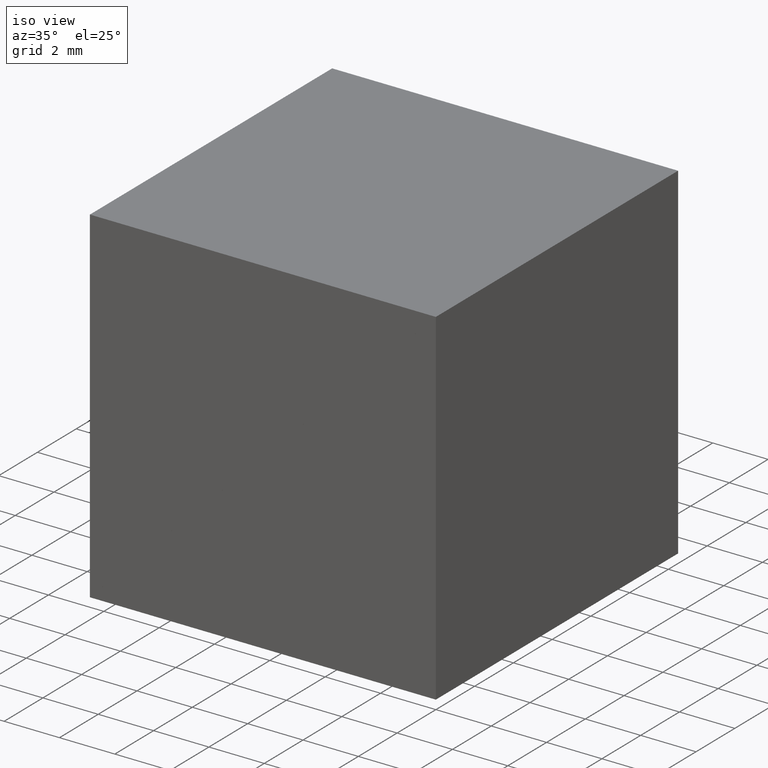
[diagram: clean part render]
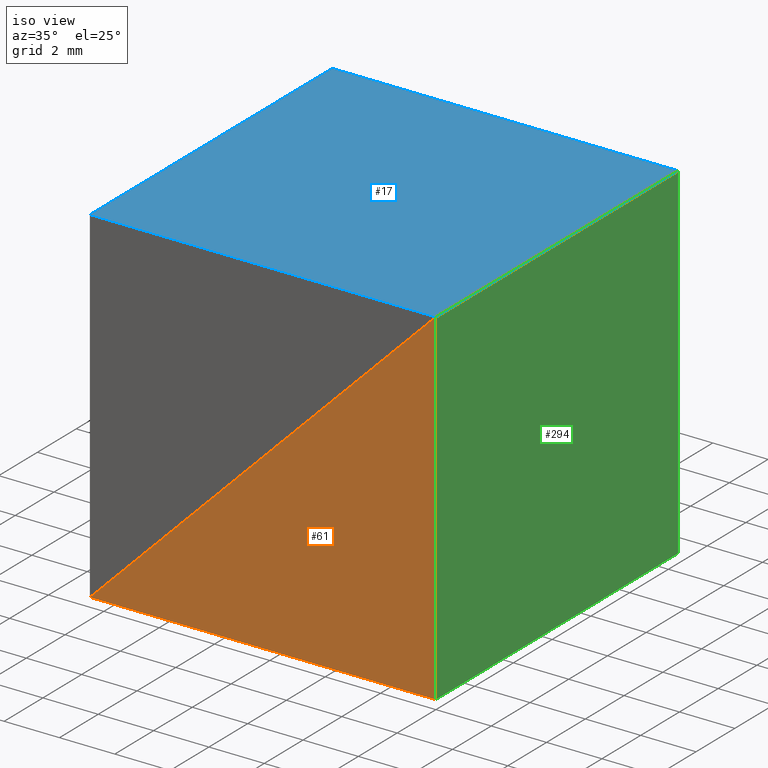
[diagram: same view with three faces highlighted in distinct colors, each labeled with its STEP entity id]
A machine part, iso view with three faces highlighted in distinct colors.
Their STEP definitions:

[orange] entity #61 — the highlighted planar face has unit normal (-0, 1, 0).
#39 = VECTOR ( 'NONE', #239, 1000.000000000000000 ) ;
#40 = AXIS2_PLACEMENT_3D ( 'NONE', #66, #200, #46 ) ;
#44 = VECTOR ( 'NONE', #103, 1000.000000000000000 ) ;
#46 = DIRECTION ( 'NONE',  ( 0.0000000000000000000, -0.0000000000000000000, 1.000000000000000000 ) ) ;
#61 = ADVANCED_FACE ( 'NONE', ( #203 ), #106, .F. ) ;
#66 = CARTESIAN_POINT ( 'NONE',  ( 0.0000000000000000000, 0.0000000000000000000, 0.0000000000000000000 ) ) ;
#71 = LINE ( 'NONE', #226, #213 ) ;
#103 = DIRECTION ( 'NONE',  ( 0.0000000000000000000, 0.0000000000000000000, -1.000000000000000000 ) ) ;
#106 = PLANE ( 'NONE',  #40 ) ;
#125 = EDGE_CURVE ( 'NONE', #240, #220, #71, .T. ) ;
#140 = LINE ( 'NONE', #217, #39 ) ;
#142 = CARTESIAN_POINT ( 'NONE',  ( -12.50000000000000000, 0.0000000000000000000, -12.49999999999999800 ) ) ;
#157 = EDGE_LOOP ( 'NONE', ( #191, #193, #251 ) ) ;
#191 = ORIENTED_EDGE ( 'NONE', *, *, #125, .F. ) ;
#193 = ORIENTED_EDGE ( 'NONE', *, *, #245, .F. ) ;
#197 = CARTESIAN_POINT ( 'NONE',  ( 0.0000000000000000000, 0.0000000000000000000, 0.0000000000000000000 ) ) ;
#199 = LINE ( 'NONE', #197, #44 ) ;
#200 = DIRECTION ( 'NONE',  ( -0.0000000000000000000, 1.000000000000000000, 0.0000000000000000000 ) ) ;
#203 = FACE_OUTER_BOUND ( 'NONE', #157, .T. ) ;
#213 = VECTOR ( 'NONE', #247, 1000.000000000000000 ) ;
#217 = CARTESIAN_POINT ( 'NONE',  ( 0.0000000000000000000, 0.0000000000000000000, -12.50000000000000000 ) ) ;
#220 = VERTEX_POINT ( 'NONE', #230 ) ;
#226 = CARTESIAN_POINT ( 'NONE',  ( -12.50000000000000000, 0.0000000000000000000, -12.49999999999999800 ) ) ;
#228 = EDGE_CURVE ( 'NONE', #220, #292, #199, .T. ) ;
#230 = CARTESIAN_POINT ( 'NONE',  ( 0.0000000000000000000, 0.0000000000000000000, 0.0000000000000000000 ) ) ;
#234 = CARTESIAN_POINT ( 'NONE',  ( 0.0000000000000000000, 0.0000000000000000000, -12.50000000000000000 ) ) ;
#239 = DIRECTION ( 'NONE',  ( -1.000000000000000000, 0.0000000000000000000, 1.387778780781445700E-016 ) ) ;
#240 = VERTEX_POINT ( 'NONE', #142 ) ;
#245 = EDGE_CURVE ( 'NONE', #292, #240, #140, .T. ) ;
#247 = DIRECTION ( 'NONE',  ( 0.7071067811865475700, 0.0000000000000000000, 0.7071067811865474600 ) ) ;
#251 = ORIENTED_EDGE ( 'NONE', *, *, #228, .F. ) ;
#292 = VERTEX_POINT ( 'NONE', #234 ) ;

[blue] entity #17 — the highlighted planar face has unit normal (-0, 0, 1).
#3 = AXIS2_PLACEMENT_3D ( 'NONE', #130, #201, #47 ) ;
#13 = VERTEX_POINT ( 'NONE', #244 ) ;
#17 = ADVANCED_FACE ( 'NONE', ( #78 ), #67, .T. ) ;
#18 = CARTESIAN_POINT ( 'NONE',  ( -12.50000000000000000, 0.0000000000000000000, 0.0000000000000000000 ) ) ;
#31 = LINE ( 'NONE', #301, #179 ) ;
#47 = DIRECTION ( 'NONE',  ( 1.000000000000000000, 0.0000000000000000000, 0.0000000000000000000 ) ) ;
#58 = VERTEX_POINT ( 'NONE', #274 ) ;
#62 = DIRECTION ( 'NONE',  ( 0.0000000000000000000, -1.000000000000000000, 0.0000000000000000000 ) ) ;
#67 = PLANE ( 'NONE',  #3 ) ;
#70 = VERTEX_POINT ( 'NONE', #243 ) ;
#72 = ORIENTED_EDGE ( 'NONE', *, *, #278, .F. ) ;
#78 = FACE_OUTER_BOUND ( 'NONE', #236, .T. ) ;
#83 = VECTOR ( 'NONE', #62, 1000.000000000000000 ) ;
#111 = VERTEX_POINT ( 'NONE', #156 ) ;
#115 = CARTESIAN_POINT ( 'NONE',  ( 0.0000000000000000000, 12.50000000000000000, 0.0000000000000000000 ) ) ;
#130 = CARTESIAN_POINT ( 'NONE',  ( -12.50000000000000000, 12.50000000000000000, 0.0000000000000000000 ) ) ;
#131 = VECTOR ( 'NONE', #225, 1000.000000000000000 ) ;
#132 = ORIENTED_EDGE ( 'NONE', *, *, #222, .F. ) ;
#138 = LINE ( 'NONE', #262, #146 ) ;
#139 = LINE ( 'NONE', #18, #131 ) ;
#146 = VECTOR ( 'NONE', #149, 1000.000000000000000 ) ;
#149 = DIRECTION ( 'NONE',  ( -1.000000000000000000, -0.0000000000000000000, -0.0000000000000000000 ) ) ;
#156 = CARTESIAN_POINT ( 'NONE',  ( 0.0000000000000000000, 0.0000000000000000000, 0.0000000000000000000 ) ) ;
#172 = ORIENTED_EDGE ( 'NONE', *, *, #186, .T. ) ;
#179 = VECTOR ( 'NONE', #299, 1000.000000000000000 ) ;
#186 = EDGE_CURVE ( 'NONE', #70, #58, #31, .T. ) ;
#201 = DIRECTION ( 'NONE',  ( -0.0000000000000000000, 0.0000000000000000000, 1.000000000000000000 ) ) ;
#205 = ORIENTED_EDGE ( 'NONE', *, *, #293, .T. ) ;
#222 = EDGE_CURVE ( 'NONE', #13, #111, #280, .T. ) ;
#225 = DIRECTION ( 'NONE',  ( -1.000000000000000000, -0.0000000000000000000, -0.0000000000000000000 ) ) ;
#236 = EDGE_LOOP ( 'NONE', ( #72, #132, #205, #172 ) ) ;
#243 = CARTESIAN_POINT ( 'NONE',  ( -12.50000000000000000, 12.50000000000000000, 0.0000000000000000000 ) ) ;
#244 = CARTESIAN_POINT ( 'NONE',  ( 0.0000000000000000000, 12.50000000000000000, 0.0000000000000000000 ) ) ;
#262 = CARTESIAN_POINT ( 'NONE',  ( -12.50000000000000000, 12.50000000000000000, 0.0000000000000000000 ) ) ;
#274 = CARTESIAN_POINT ( 'NONE',  ( -12.50000000000000000, 0.0000000000000000000, 0.0000000000000000000 ) ) ;
#278 = EDGE_CURVE ( 'NONE', #111, #58, #139, .T. ) ;
#280 = LINE ( 'NONE', #115, #83 ) ;
#293 = EDGE_CURVE ( 'NONE', #13, #70, #138, .T. ) ;
#299 = DIRECTION ( 'NONE',  ( 0.0000000000000000000, -1.000000000000000000, 0.0000000000000000000 ) ) ;
#301 = CARTESIAN_POINT ( 'NONE',  ( -12.50000000000000000, 12.50000000000000000, 0.0000000000000000000 ) ) ;

[green] entity #294 — the highlighted planar face has unit normal (-1, 0, 0).
#11 = CARTESIAN_POINT ( 'NONE',  ( 0.0000000000000000000, 12.50000000000000000, 0.0000000000000000000 ) ) ;
#24 = DIRECTION ( 'NONE',  ( -0.0000000000000000000, -1.000000000000000000, -0.0000000000000000000 ) ) ;
#29 = CARTESIAN_POINT ( 'NONE',  ( 0.0000000000000000000, 12.50000000000000000, 0.0000000000000000000 ) ) ;
#44 = VECTOR ( 'NONE', #103, 1000.000000000000000 ) ;
#54 = DIRECTION ( 'NONE',  ( -0.0000000000000000000, -1.000000000000000000, -0.0000000000000000000 ) ) ;
#56 = VERTEX_POINT ( 'NONE', #158 ) ;
#57 = PLANE ( 'NONE',  #232 ) ;
#74 = EDGE_LOOP ( 'NONE', ( #169, #284, #100, #287 ) ) ;
#87 = LINE ( 'NONE', #177, #282 ) ;
#100 = ORIENTED_EDGE ( 'NONE', *, *, #235, .F. ) ;
#103 = DIRECTION ( 'NONE',  ( 0.0000000000000000000, 0.0000000000000000000, -1.000000000000000000 ) ) ;
#150 = EDGE_CURVE ( 'NONE', #56, #292, #87, .T. ) ;
#153 = DIRECTION ( 'NONE',  ( 0.0000000000000000000, 0.0000000000000000000, -1.000000000000000000 ) ) ;
#158 = CARTESIAN_POINT ( 'NONE',  ( 0.0000000000000000000, 12.50000000000000000, -12.50000000000000000 ) ) ;
#169 = ORIENTED_EDGE ( 'NONE', *, *, #228, .T. ) ;
#177 = CARTESIAN_POINT ( 'NONE',  ( 0.0000000000000000000, 12.50000000000000000, -12.50000000000000000 ) ) ;
#188 = CARTESIAN_POINT ( 'NONE',  ( 0.0000000000000000000, 12.50000000000000000, 0.0000000000000000000 ) ) ;
#190 = EDGE_CURVE ( 'NONE', #300, #220, #249, .T. ) ;
#197 = CARTESIAN_POINT ( 'NONE',  ( 0.0000000000000000000, 0.0000000000000000000, 0.0000000000000000000 ) ) ;
#199 = LINE ( 'NONE', #197, #44 ) ;
#207 = VECTOR ( 'NONE', #54, 1000.000000000000000 ) ;
#211 = LINE ( 'NONE', #241, #261 ) ;
#220 = VERTEX_POINT ( 'NONE', #230 ) ;
#228 = EDGE_CURVE ( 'NONE', #220, #292, #199, .T. ) ;
#230 = CARTESIAN_POINT ( 'NONE',  ( 0.0000000000000000000, 0.0000000000000000000, 0.0000000000000000000 ) ) ;
#232 = AXIS2_PLACEMENT_3D ( 'NONE', #188, #288, #233 ) ;
#233 = DIRECTION ( 'NONE',  ( 0.0000000000000000000, 0.0000000000000000000, 1.000000000000000000 ) ) ;
#234 = CARTESIAN_POINT ( 'NONE',  ( 0.0000000000000000000, 0.0000000000000000000, -12.50000000000000000 ) ) ;
#235 = EDGE_CURVE ( 'NONE', #300, #56, #211, .T. ) ;
#241 = CARTESIAN_POINT ( 'NONE',  ( 0.0000000000000000000, 12.50000000000000000, 0.0000000000000000000 ) ) ;
#249 = LINE ( 'NONE', #29, #207 ) ;
#252 = FACE_OUTER_BOUND ( 'NONE', #74, .T. ) ;
#261 = VECTOR ( 'NONE', #153, 1000.000000000000000 ) ;
#282 = VECTOR ( 'NONE', #24, 1000.000000000000000 ) ;
#284 = ORIENTED_EDGE ( 'NONE', *, *, #150, .F. ) ;
#287 = ORIENTED_EDGE ( 'NONE', *, *, #190, .T. ) ;
#288 = DIRECTION ( 'NONE',  ( -1.000000000000000000, 0.0000000000000000000, 0.0000000000000000000 ) ) ;
#292 = VERTEX_POINT ( 'NONE', #234 ) ;
#294 = ADVANCED_FACE ( 'NONE', ( #252 ), #57, .F. ) ;
#300 = VERTEX_POINT ( 'NONE', #11 ) ;